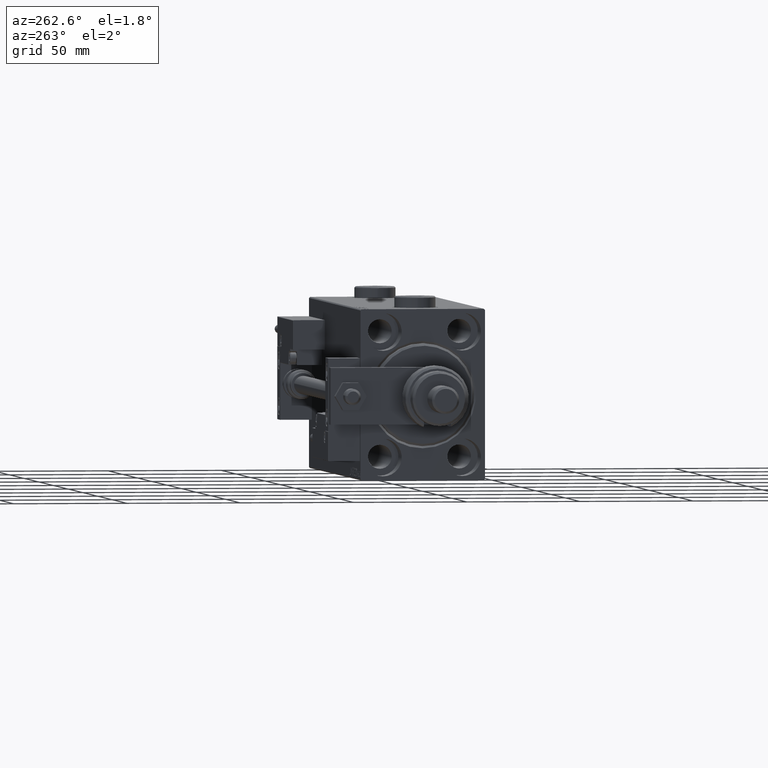
[diagram: clean part render]
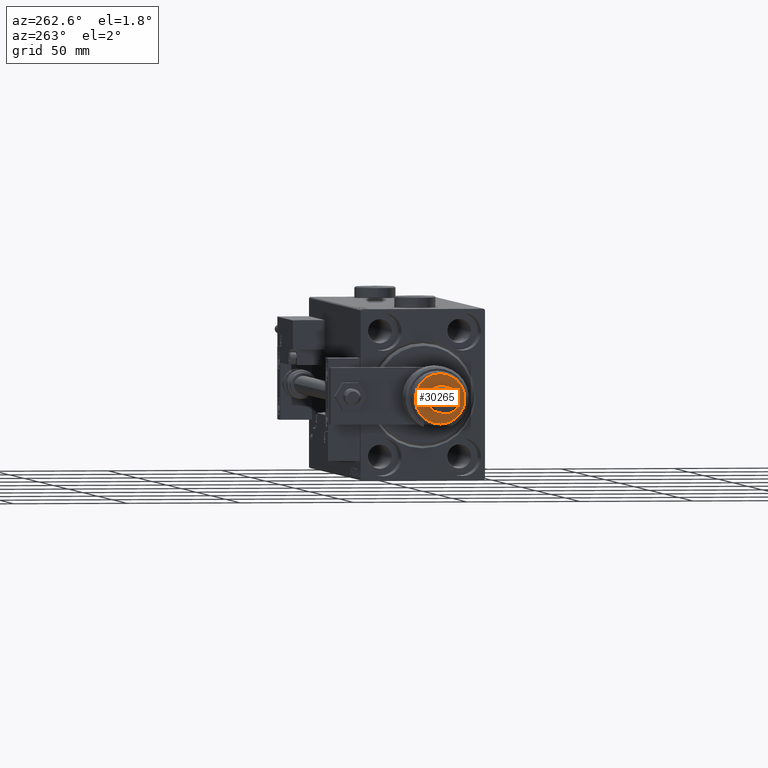
[diagram: same view with one face highlighted and labeled with its STEP entity id]
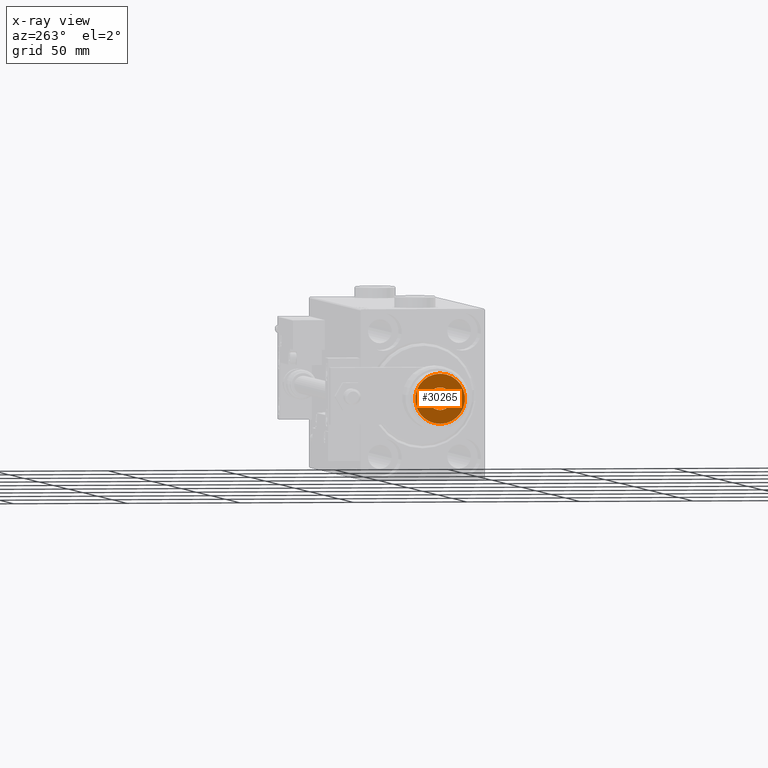
[diagram: x-ray of the same camera — body ghosted, the highlighted face saturated]
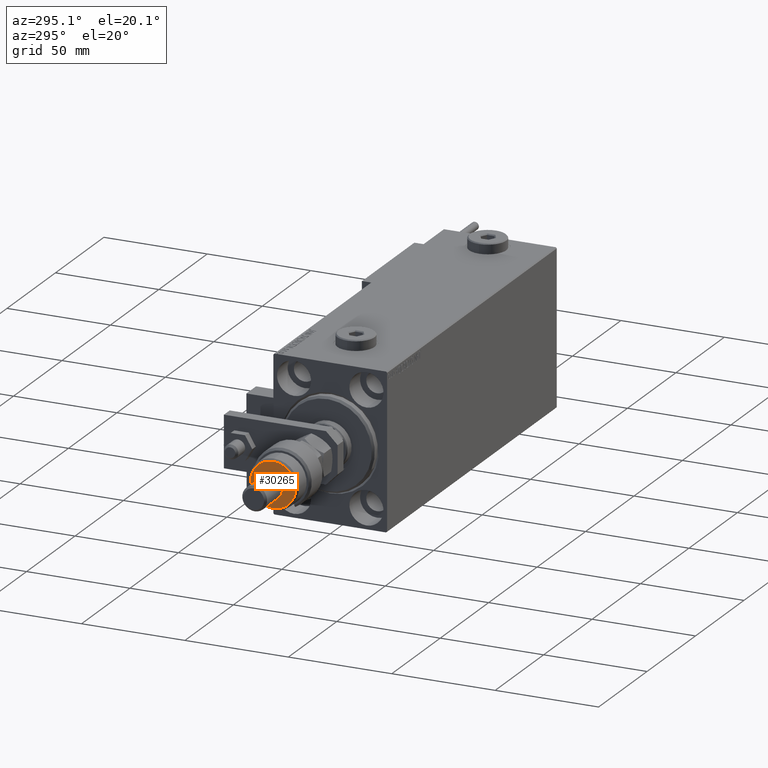
[diagram: same view with one face highlighted and labeled with its STEP entity id]
A machine part, auxiliary view. The second image highlights one B-rep face of the part: STEP entity #30265.
The next image is the same camera in x-ray: the body ghosted, the highlighted face saturated — about 0% of this face is hidden behind the body in this view.
A second angle (auxiliary view) of the same face is appended — the face is thin or edge-on in the first view.
In plain terms, the highlighted planar face has unit normal (-1, 0, 0).
Its self-contained STEP definition (entity closure, byte-faithful):
#43 = AXIS2_PLACEMENT_3D ( 'NONE', #32132, #40659, #49446 ) ;
#1989 = DIRECTION ( 'NONE',  ( 1.000000000000000000, 0.000000000000000000, 0.000000000000000000 ) ) ;
#2908 = AXIS2_PLACEMENT_3D ( 'NONE', #16166, #25206, #50220 ) ;
#3570 = FACE_BOUND ( 'NONE', #6666, .T. ) ;
#6117 = CARTESIAN_POINT ( 'NONE',  ( 0.000000000000000000, 0.000000000000000000, 22.00000000000000000 ) ) ;
#6343 = ORIENTED_EDGE ( 'NONE', *, *, #27637, .T. ) ;
#6666 = EDGE_LOOP ( 'NONE', ( #14591, #10711 ) ) ;
#9937 = VERTEX_POINT ( 'NONE', #44221 ) ;
#10020 = EDGE_CURVE ( 'NONE', #23642, #10317, #15170, .T. ) ;
#10317 = VERTEX_POINT ( 'NONE', #24875 ) ;
#10711 = ORIENTED_EDGE ( 'NONE', *, *, #10020, .F. ) ;
#12350 = DIRECTION ( 'NONE',  ( 1.000000000000000000, 0.000000000000000000, 0.000000000000000000 ) ) ;
#12643 = CARTESIAN_POINT ( 'NONE',  ( 0.000000000000000000, 0.000000000000000000, 22.00000000000000000 ) ) ;
#13717 = DIRECTION ( 'NONE',  ( 0.000000000000000000, 0.000000000000000000, 1.000000000000000000 ) ) ;
#14361 = EDGE_CURVE ( 'NONE', #9937, #49702, #25001, .T. ) ;
#14591 = ORIENTED_EDGE ( 'NONE', *, *, #31357, .F. ) ;
#15170 = CIRCLE ( 'NONE', #2908, 5.000000000000000000 ) ;
#16166 = CARTESIAN_POINT ( 'NONE',  ( 0.000000000000000000, 0.000000000000000000, 22.00000000000000000 ) ) ;
#22039 = AXIS2_PLACEMENT_3D ( 'NONE', #36277, #41209, #12350 ) ;
#22848 = DIRECTION ( 'NONE',  ( 0.000000000000000000, 0.000000000000000000, 1.000000000000000000 ) ) ;
#23642 = VERTEX_POINT ( 'NONE', #47558 ) ;
#24677 = CIRCLE ( 'NONE', #22039, 5.000000000000000000 ) ;
#24875 = CARTESIAN_POINT ( 'NONE',  ( -5.000000000000000000, 0.000000000000000000, 22.00000000000000000 ) ) ;
#25001 = CIRCLE ( 'NONE', #35562, 10.99999999999999645 ) ;
#25061 = ORIENTED_EDGE ( 'NONE', *, *, #14361, .T. ) ;
#25206 = DIRECTION ( 'NONE',  ( 0.000000000000000000, 0.000000000000000000, 1.000000000000000000 ) ) ;
#27637 = EDGE_CURVE ( 'NONE', #49702, #9937, #49992, .T. ) ;
#28058 = AXIS2_PLACEMENT_3D ( 'NONE', #6117, #22848, #1989 ) ;
#29388 = DIRECTION ( 'NONE',  ( 1.000000000000000000, 0.000000000000000000, 0.000000000000000000 ) ) ;
#30265 = ADVANCED_FACE ( 'NONE', ( #32682, #3570 ), #40935, .T. ) ;
#31357 = EDGE_CURVE ( 'NONE', #10317, #23642, #24677, .T. ) ;
#32132 = CARTESIAN_POINT ( 'NONE',  ( 0.000000000000000000, 0.000000000000000000, 22.00000000000000000 ) ) ;
#32360 = EDGE_LOOP ( 'NONE', ( #6343, #25061 ) ) ;
#32682 = FACE_OUTER_BOUND ( 'NONE', #32360, .T. ) ;
#35562 = AXIS2_PLACEMENT_3D ( 'NONE', #12643, #13717, #29388 ) ;
#36277 = CARTESIAN_POINT ( 'NONE',  ( 0.000000000000000000, 0.000000000000000000, 22.00000000000000000 ) ) ;
#39706 = CARTESIAN_POINT ( 'NONE',  ( -10.99999999999999645, 0.000000000000000000, 22.00000000000000000 ) ) ;
#40659 = DIRECTION ( 'NONE',  ( 0.000000000000000000, 0.000000000000000000, 1.000000000000000000 ) ) ;
#40935 = PLANE ( 'NONE',  #43 ) ;
#41209 = DIRECTION ( 'NONE',  ( 0.000000000000000000, 0.000000000000000000, 1.000000000000000000 ) ) ;
#44221 = CARTESIAN_POINT ( 'NONE',  ( 10.99999999999999645, 1.408343819019456176E-15, 22.00000000000000000 ) ) ;
#47558 = CARTESIAN_POINT ( 'NONE',  ( 5.000000000000000000, 6.123233995736766282E-16, 22.00000000000000000 ) ) ;
#49446 = DIRECTION ( 'NONE',  ( 1.000000000000000000, 0.000000000000000000, -0.000000000000000000 ) ) ;
#49702 = VERTEX_POINT ( 'NONE', #39706 ) ;
#49992 = CIRCLE ( 'NONE', #28058, 10.99999999999999645 ) ;
#50220 = DIRECTION ( 'NONE',  ( 1.000000000000000000, 0.000000000000000000, 0.000000000000000000 ) ) ;